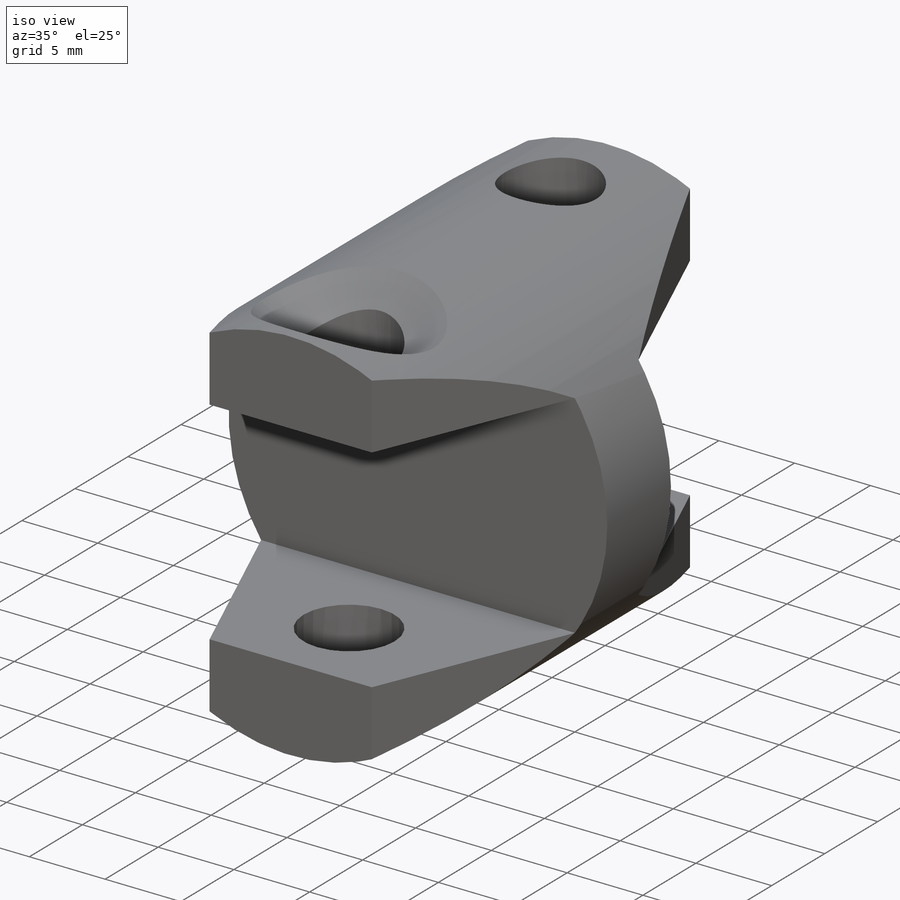
[diagram: iso view]
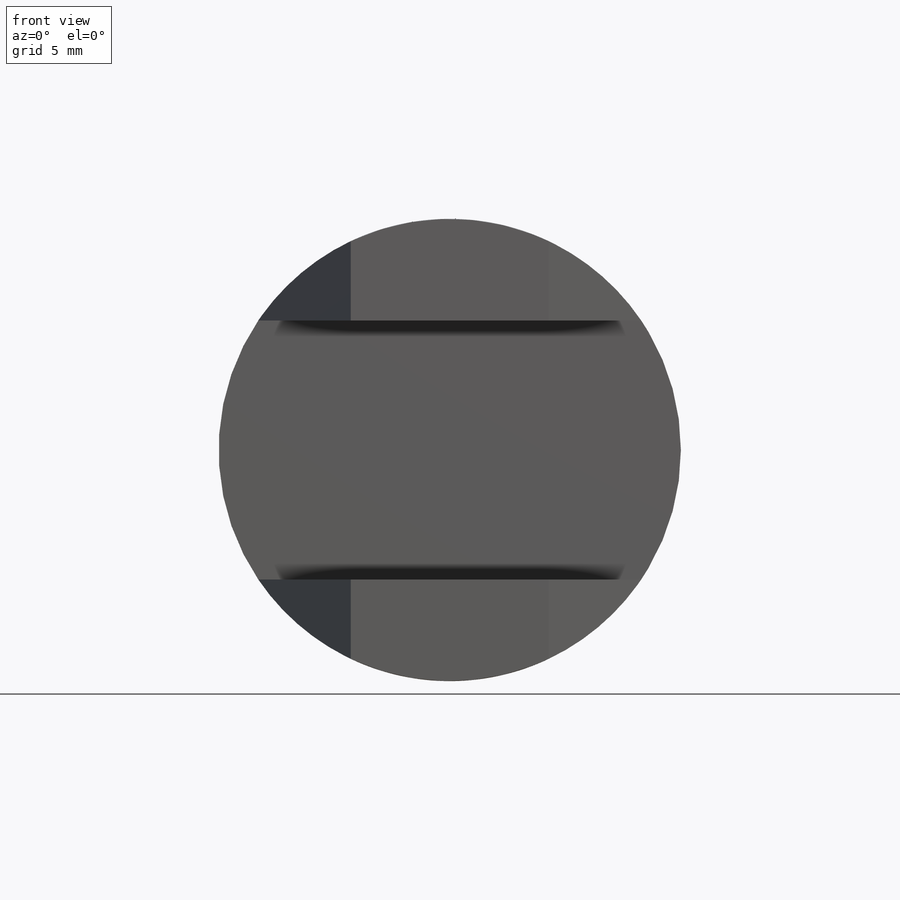
[diagram: front view]
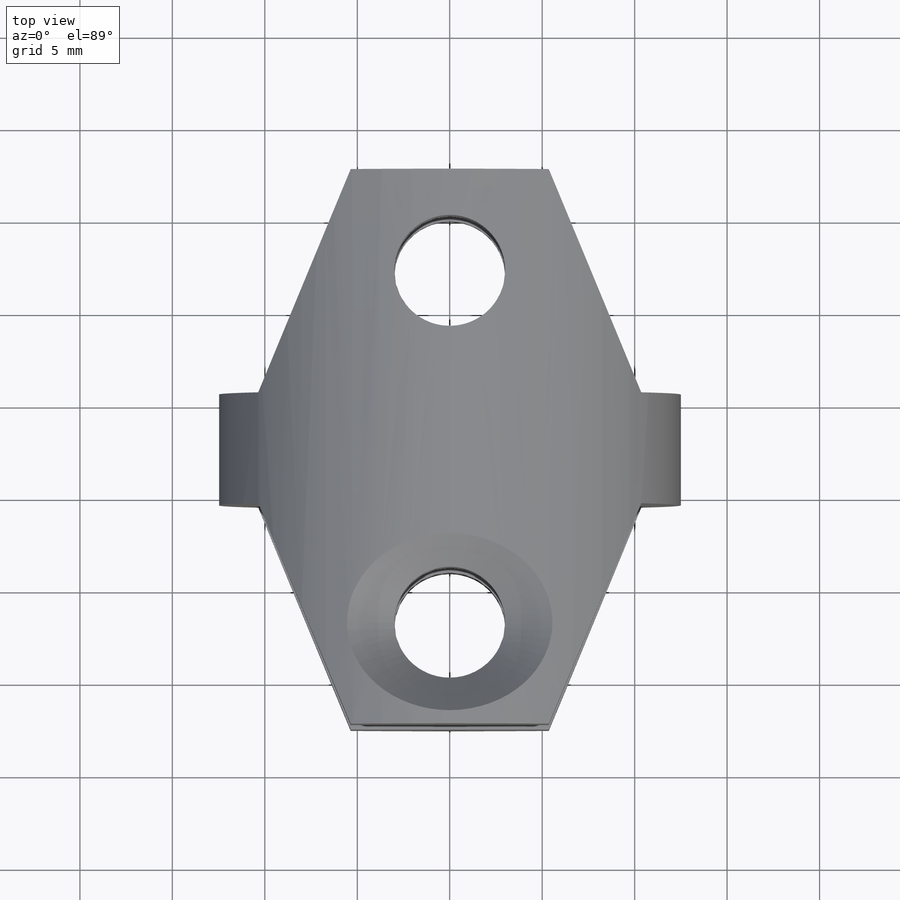
[diagram: top view]
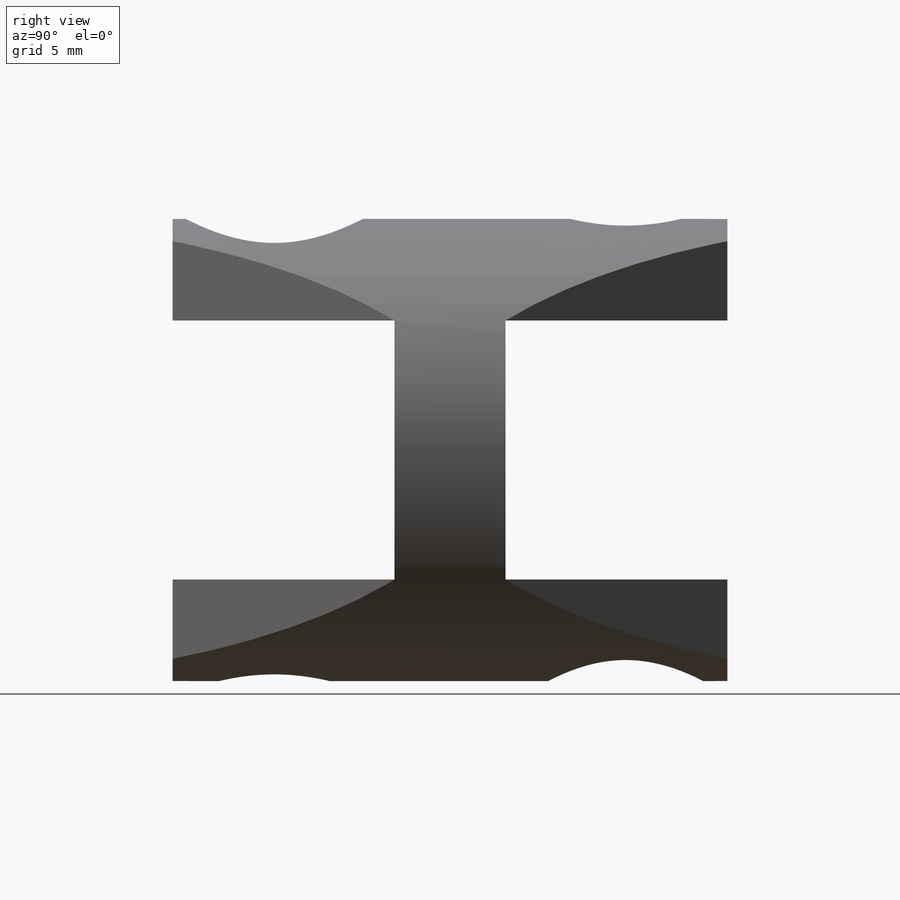
[diagram: right view]
SOLIDWORKS PART (.sldprt)
format: sldprt  version: not decoded by parser v0  size: 523,264 bytes
history: native  units: mm
features: sketch x4, cut_extrude x3, material x1, extrude x1, mirror x1, chamfer x1 (+15 scaffold rows collapsed)
feature tree (26):
  scaffold x15  (default folders/planes/origin — collapsed)
  material  "Material <not specified>"
  sketch  "Sketch1"  dims[D1=25.0mm]
  extrude  "Extrude1"  Depth=15mm
  sketch  "Sketch2"  dims[c1.D1=17.0mm c1.D2=15.0mm c1.D3=8.0mm c2.D1=12.0mm c2.D2=14.0mm]
  cut_extrude  "Cut-Extrude1"  Depth=25mm
  sketch  "Sketch5"  dims[D1=6.0mm D2=2.0mm]
  cut_extrude  "Cut-Extrude4"  Depth=25mm
  sketch  "Sketch7"  dims[D1=5.0mm]
  cut_extrude  "Cut-Extrude5"  Depth=25mm
  mirror  "Mirror1"
  chamfer  "Chamfer1"  Distance=3mm Angle=45deg
decode coverage: 9 of 10 modeling features carry decoded parameters
note: suppression state not decoded; provenance and decode notes live in map.json
